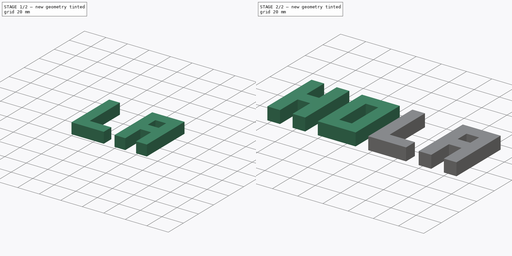
[diagram: build sequence overview — one tinted view per stage of 2, left to right]
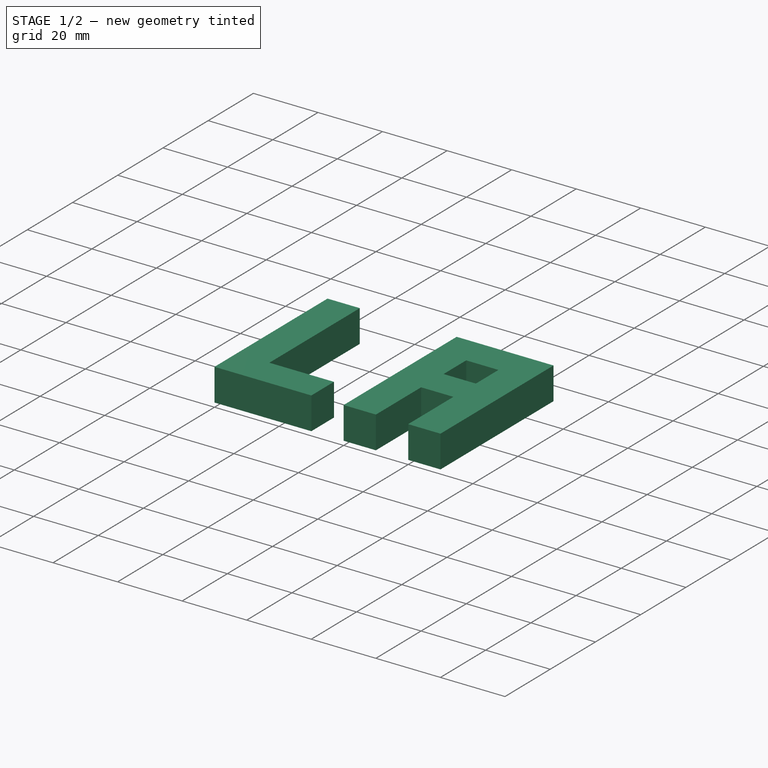
[diagram: stage 1 of 2 — iso view after this stage's code; geometry added in this stage tinted green]
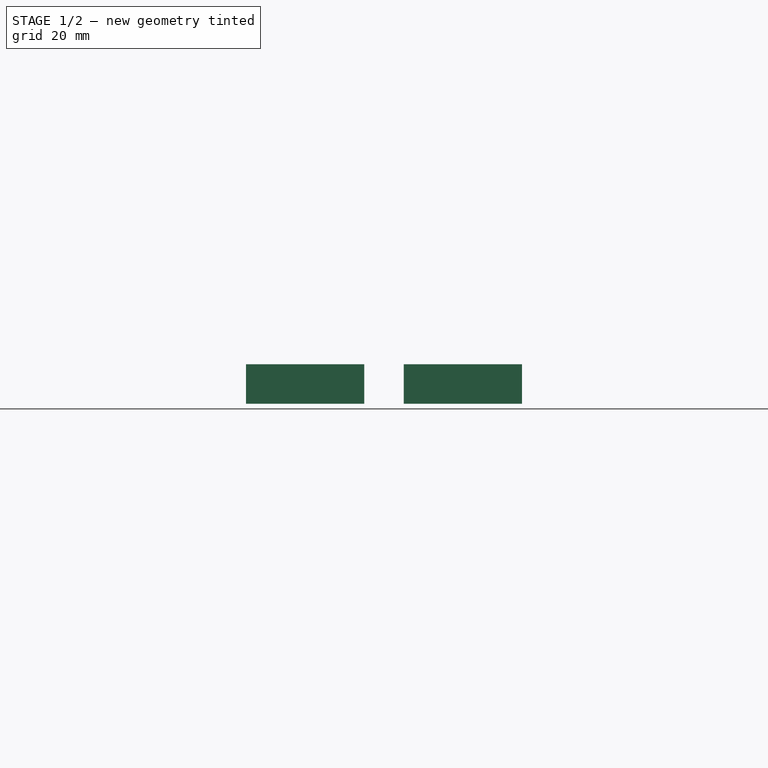
[diagram: stage 1 of 2 — front view after this stage's code; geometry added in this stage tinted green]
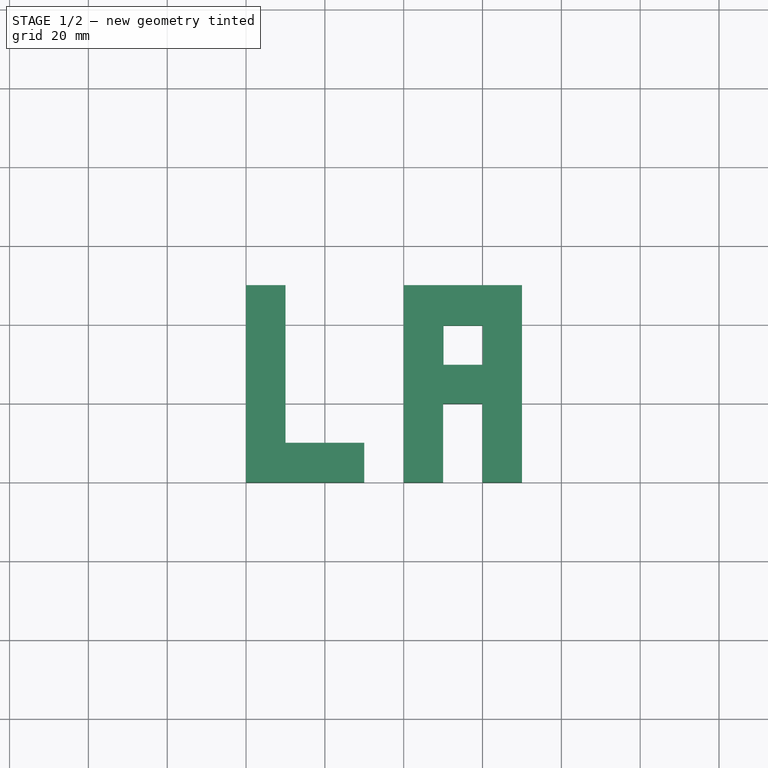
[diagram: stage 1 of 2 — top view after this stage's code; geometry added in this stage tinted green]
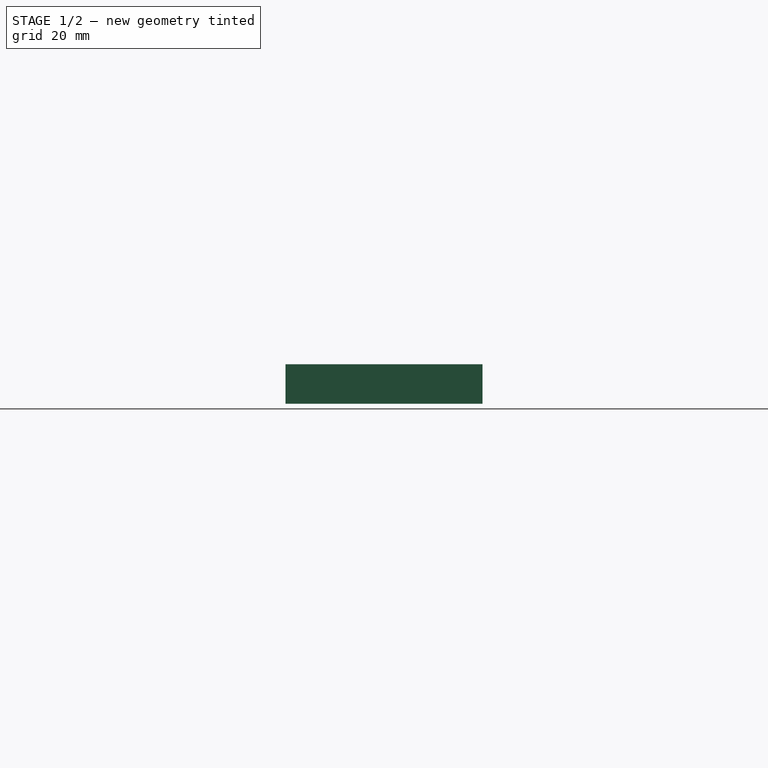
[diagram: stage 1 of 2 — right view after this stage's code; geometry added in this stage tinted green]
FCSTD DOCUMENT  (FreeCAD 0.16R6707 (Git))
Label: 05-2-letras-HOLA
License: All rights reserved
LicenseURL: http://en.wikipedia.org/wiki/All_rights_reserved
objects: Sketcher::SketchObject×4, PartDesign::Pad×4
note: 12 computed .brp shape members not serialized (recipe doc carries the construction recipe); baked Part::Feature solids carry a one-line shape summary decoded from their .brp

FEATURE [Sketcher::SketchObject] Sketch002  label="Boceto-L"
  sketch-geometry (6):
    g0: LineSegment StartX=0 StartY=50 StartZ=0 EndX=0 EndY=0 EndZ=0
    g1: LineSegment StartX=0 StartY=0 StartZ=0 EndX=30 EndY=0 EndZ=0
    g2: LineSegment StartX=30 StartY=0 StartZ=0 EndX=30 EndY=10 EndZ=0
    g3: LineSegment StartX=30 StartY=10 StartZ=0 EndX=10 EndY=10 EndZ=0
    g4: LineSegment StartX=10 StartY=10 StartZ=0 EndX=10 EndY=50 EndZ=0
    g5: LineSegment StartX=10 StartY=50 StartZ=0 EndX=0 EndY=50 EndZ=0
  constraints (17):
    c: Vertical(g0)
    c: Coincident(g0,g1)
    c: Horizontal(g1)
    c: Coincident(g1,g2)
    c: Vertical(g2)
    c: Coincident(g2,g3)
    c: Horizontal(g3)
    c: Coincident(g3,g4)
    c: Vertical(g4)
    c: Coincident(g4,g5)
    c: Coincident(g5,g0)
    c: Horizontal(g5)
    c: Coincident(g0,g-1)
    c: DistanceY(g0) = -50
    c: DistanceX(g1) = 30
    c: Equal(g5,g2)
    c: DistanceX(g5) = -10
FEATURE [PartDesign::Pad] Pad002  label="Letra-L"
  Length = 10
  Length2 = 100
  Sketch = -> Sketch002
  Type = 0
FEATURE [Sketcher::SketchObject] Sketch003  label="Boceto-A"
  Placement = pos=(40,0,0) rot=(0,0,1;0rad)
  sketch-geometry (12):
    g0: LineSegment StartX=0 StartY=0 StartZ=0 EndX=0 EndY=50 EndZ=0
    g1: LineSegment StartX=0 StartY=50 StartZ=0 EndX=30 EndY=50 EndZ=0
    g2: LineSegment StartX=30 StartY=50 StartZ=0 EndX=30 EndY=0 EndZ=0
    g3: LineSegment StartX=30 StartY=0 StartZ=0 EndX=20 EndY=0 EndZ=0
    g4: LineSegment StartX=20 StartY=0 StartZ=0 EndX=20 EndY=20 EndZ=0
    g5: LineSegment StartX=20 StartY=20 StartZ=0 EndX=10 EndY=20 EndZ=0
    g6: LineSegment StartX=10 StartY=20 StartZ=0 EndX=10 EndY=0 EndZ=0
    g7: LineSegment StartX=10 StartY=0 StartZ=0 EndX=0 EndY=0 EndZ=0
    g8: LineSegment StartX=10.0981 StartY=39.7981 StartZ=0 EndX=20.0981 EndY=39.7981 EndZ=0
    g9: LineSegment StartX=20.0981 StartY=39.7981 StartZ=0 EndX=20.0981 EndY=29.7981 EndZ=0
    g10: LineSegment StartX=20.0981 StartY=29.7981 StartZ=0 EndX=10.0981 EndY=29.7981 EndZ=0
    g11: LineSegment StartX=10.0981 StartY=29.7981 StartZ=0 EndX=10.0981 EndY=39.7981 EndZ=0
  constraints (35):
    c: Vertical(g0)
    c: Coincident(g0,g1)
    c: Horizontal(g1)
    c: Vertical(g2)
    c: Coincident(g2,g3)
    c: Horizontal(g3)
    c: Coincident(g3,g4)
    c: Coincident(g4,g5)
    c: Coincident(g5,g6)
    c: Coincident(g6,g7)
    c: Coincident(g7,g0)
    c: Coincident(g1,g2)
    c: Horizontal(g5)
    c: Horizontal(g7)
    c: Vertical(g4)
    c: Vertical(g6)
    c: Coincident(g0,g-1)
    c: Equal(g0,g2)
    c: DistanceY(g0) = 50
    c: Equal(g7,g3)
    c: Equal(g5,g7)
    c: DistanceX(g1) = 30
    c: DistanceY(g4) = 20
    c: Coincident(g8,g9)
    c: Coincident(g9,g10)
    c: Coincident(g10,g11)
    c: Coincident(g11,g8)
    c: Horizontal(g8)
    c: Horizontal(g10)
    c: Vertical(g9)
    c: Vertical(g11)
    c: Equal(g11,g10)
    c: DistanceX(g8) = 10
    c: DistanceX(g8,g0) = -10.0981
    c: DistanceY(g8,g0) = 10.2019
FEATURE [PartDesign::Pad] Pad003  label="Letra-A"
  Length = 10
  Length2 = 100
  Placement = pos=(40,0,0) rot=(0,0,1;0rad)
  Sketch = -> Sketch003
  Type = 0
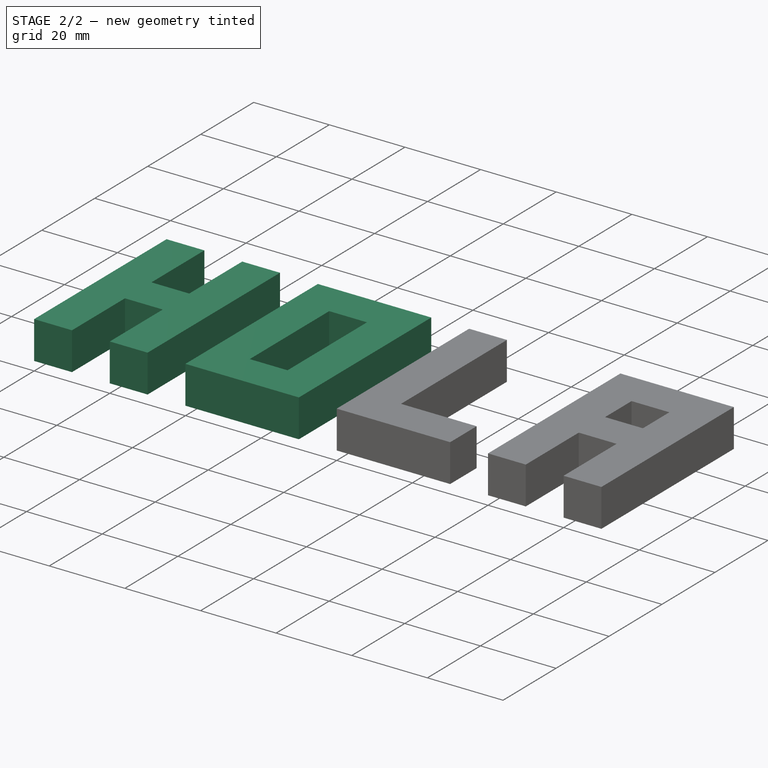
[diagram: stage 2 of 2 — iso view after this stage's code; geometry added in this stage tinted green]
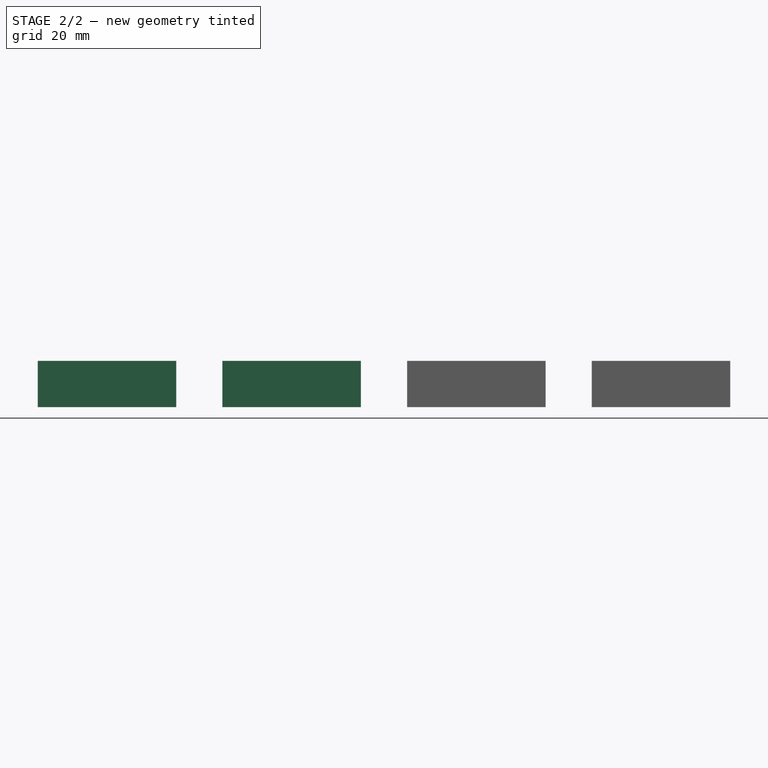
[diagram: stage 2 of 2 — front view after this stage's code; geometry added in this stage tinted green]
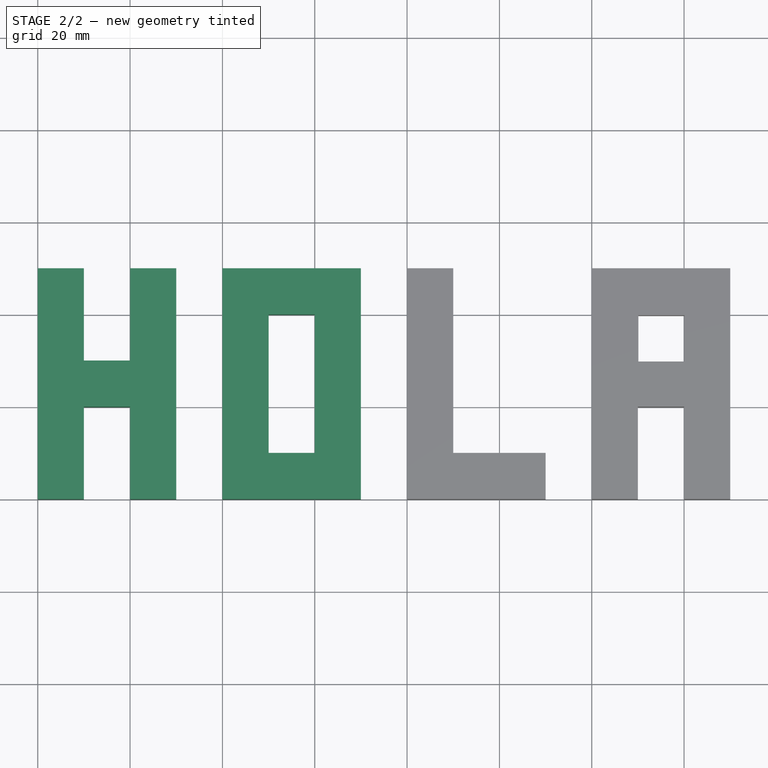
[diagram: stage 2 of 2 — top view after this stage's code; geometry added in this stage tinted green]
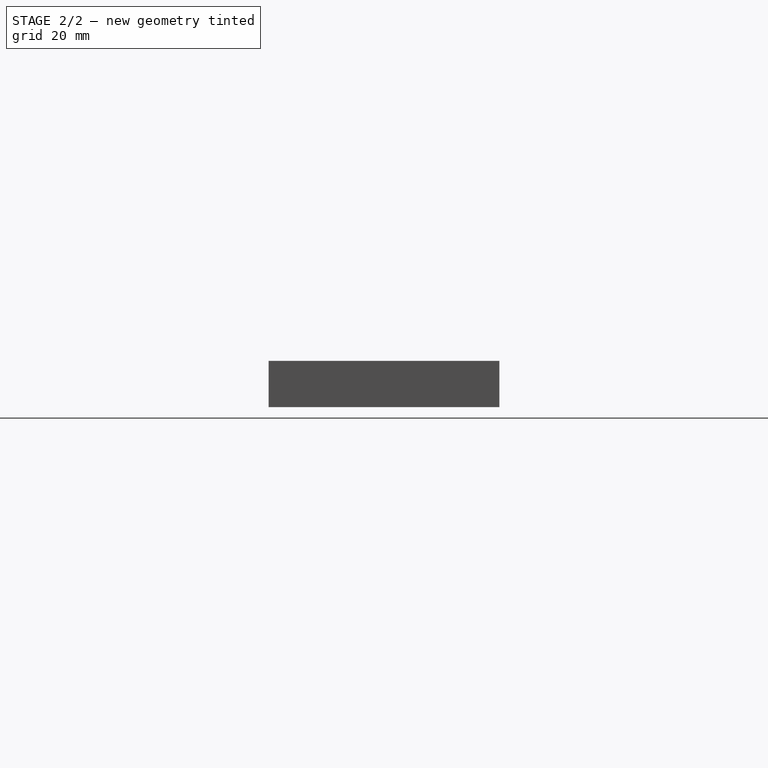
[diagram: stage 2 of 2 — right view after this stage's code; geometry added in this stage tinted green]
FEATURE [Sketcher::SketchObject] Sketch  label="Boceto-H"
  Placement = pos=(-80,0,0) rot=(0,0,1;0rad)
  sketch-geometry (12):
    g0: LineSegment StartX=0 StartY=0 StartZ=0 EndX=10 EndY=0 EndZ=0
    g1: LineSegment StartX=10 StartY=0 StartZ=0 EndX=10 EndY=20 EndZ=0
    g2: LineSegment StartX=10 StartY=20 StartZ=0 EndX=20 EndY=20 EndZ=0
    g3: LineSegment StartX=20 StartY=20 StartZ=0 EndX=20 EndY=0 EndZ=0
    g4: LineSegment StartX=20 StartY=0 StartZ=0 EndX=30 EndY=0 EndZ=0
    g5: LineSegment StartX=30 StartY=0 StartZ=0 EndX=30 EndY=50 EndZ=0
    g6: LineSegment StartX=30 StartY=50 StartZ=0 EndX=20 EndY=50 EndZ=0
    g7: LineSegment StartX=20 StartY=50 StartZ=0 EndX=20 EndY=30 EndZ=0
    g8: LineSegment StartX=20 StartY=30 StartZ=0 EndX=10 EndY=30 EndZ=0
    g9: LineSegment StartX=10 StartY=30 StartZ=0 EndX=10 EndY=50 EndZ=0
    g10: LineSegment StartX=10 StartY=50 StartZ=0 EndX=0 EndY=50 EndZ=0
    g11: LineSegment StartX=0 StartY=50 StartZ=0 EndX=0 EndY=0 EndZ=0
  constraints (37):
    c: Horizontal(g0)
    c: Coincident(g0,g1)
    c: Vertical(g1)
    c: Coincident(g1,g2)
    c: Horizontal(g2)
    c: Coincident(g2,g3)
    c: Vertical(g3)
    c: Coincident(g3,g4)
    c: Horizontal(g4)
    c: Coincident(g4,g5)
    c: Vertical(g5)
    c: Coincident(g5,g6)
    c: Horizontal(g6)
    c: Coincident(g6,g7)
    c: Vertical(g7)
    c: Coincident(g7,g8)
    c: Horizontal(g8)
    c: Coincident(g8,g9)
    c: Vertical(g9)
    c: Coincident(g9,g10)
    c: Horizontal(g10)
    c: Vertical(g11)
    c: Coincident(g11,g10)
    c: Coincident(g11,g0)
    c: Equal(g11,g5)
    c: Equal(g10,g0)
    c: Equal(g0,g4)
    c: Equal(g4,g6)
    c: Equal(g6,g8)
    c: Equal(g8,g2)
    c: Coincident(g0,g-1)
    c: Equal(g1,g9)
    c: Equal(g9,g7)
    c: Equal(g7,g3)
    c: DistanceY(g2,g7) = 10
    c: DistanceY(g11,g11) = 50
    c: DistanceX(g10,g10) = 10
FEATURE [PartDesign::Pad] Pad  label="Letra-H"
  Length = 10
  Length2 = 100
  Placement = pos=(-80,0,0) rot=(0,0,1;0rad)
  Sketch = -> Sketch
  Type = 0
FEATURE [Sketcher::SketchObject] Sketch001  label="Boceto-O"
  Placement = pos=(-40,0,0) rot=(0,0,1;0rad)
  sketch-geometry (8):
    g0: LineSegment StartX=0 StartY=0 StartZ=0 EndX=30 EndY=0 EndZ=0
    g1: LineSegment StartX=30 StartY=0 StartZ=0 EndX=30 EndY=50 EndZ=0
    g2: LineSegment StartX=30 StartY=50 StartZ=0 EndX=0 EndY=50 EndZ=0
    g3: LineSegment StartX=0 StartY=50 StartZ=0 EndX=0 EndY=0 EndZ=0
    g4: LineSegment StartX=10 StartY=40 StartZ=0 EndX=20 EndY=40 EndZ=0
    g5: LineSegment StartX=20 StartY=40 StartZ=0 EndX=20 EndY=10 EndZ=0
    g6: LineSegment StartX=20 StartY=10 StartZ=0 EndX=10 EndY=10 EndZ=0
    g7: LineSegment StartX=10 StartY=10 StartZ=0 EndX=10 EndY=40 EndZ=0
  constraints (23):
    c: Coincident(g0,g1)
    c: Coincident(g1,g2)
    c: Coincident(g2,g3)
    c: Coincident(g3,g0)
    c: Horizontal(g0)
    c: Horizontal(g2)
    c: Vertical(g1)
    c: Vertical(g3)
    c: Coincident(g0,g-1)
    c: DistanceY(g3) = -50
    c: DistanceX(g2) = -30
    c: Coincident(g4,g5)
    c: Coincident(g5,g6)
    c: Coincident(g6,g7)
    c: Coincident(g7,g4)
    c: Horizontal(g4)
    c: Horizontal(g6)
    c: Vertical(g5)
    c: Vertical(g7)
    c: DistanceX(g4) = 10
    c: DistanceY(g5) = -30
    c: DistanceX(g-1,g6) = 10
    c: DistanceY(g-1,g6) = 10
FEATURE [PartDesign::Pad] Pad001  label="Letra-O"
  Length = 10
  Length2 = 100
  Placement = pos=(-40,0,0) rot=(0,0,1;0rad)
  Sketch = -> Sketch001
  Type = 0
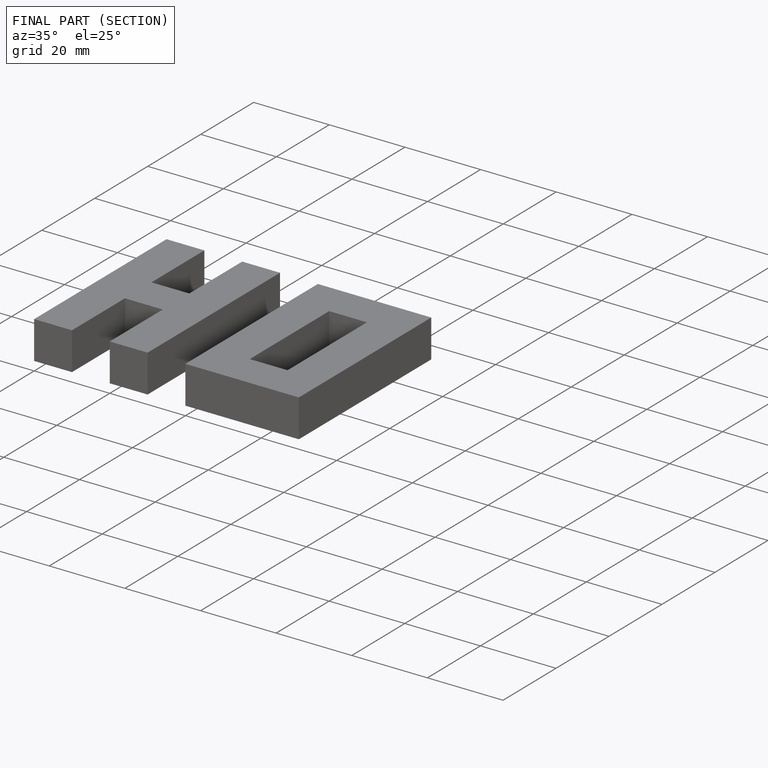
[diagram: finished part — half-section view (interior)]
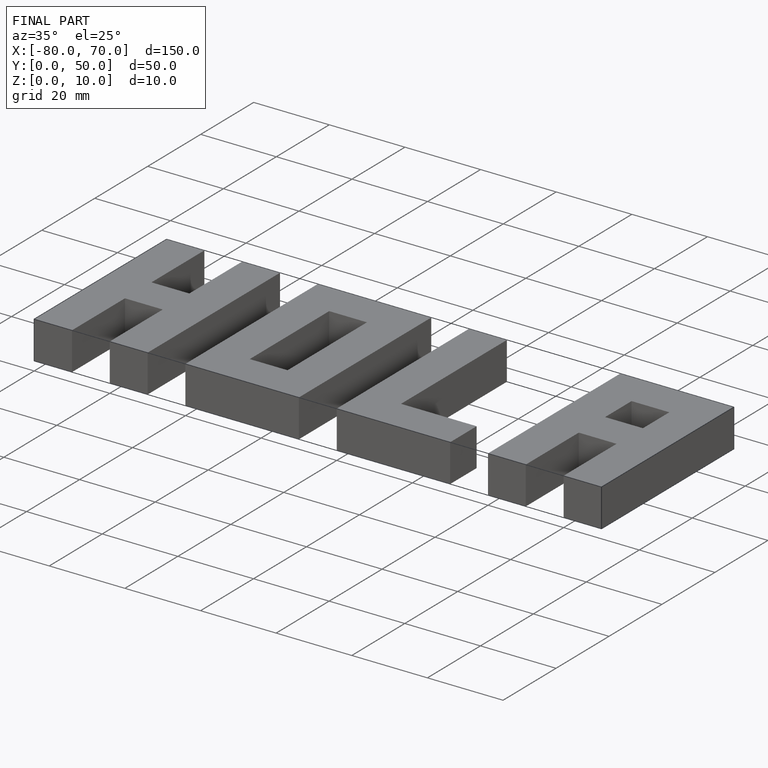
[diagram: finished part — iso view with bounding-box wireframe]
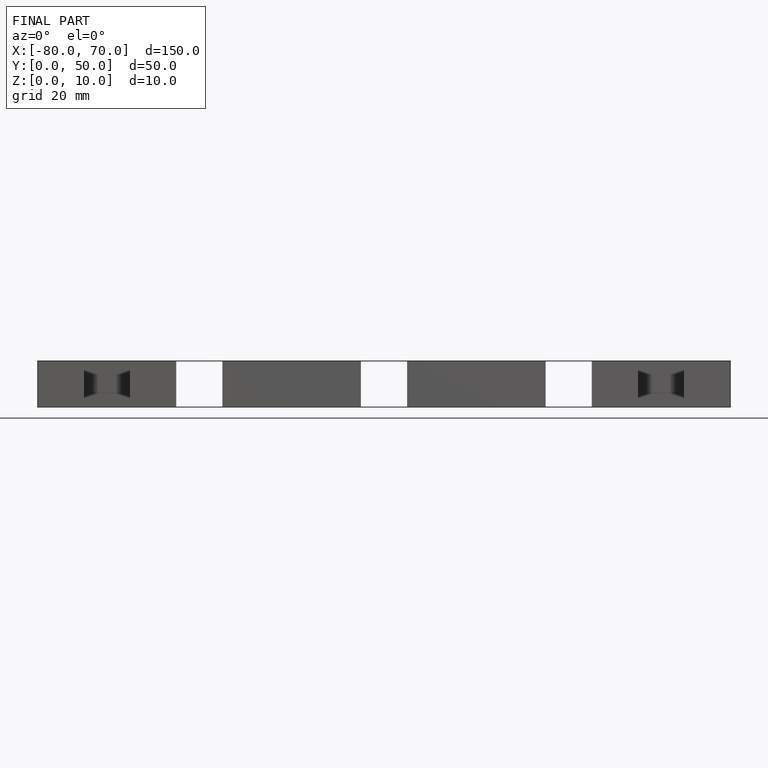
[diagram: finished part — front view with bounding-box wireframe]
